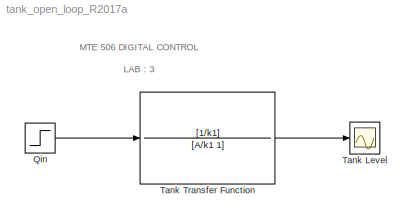
MODEL tank_open_loop_R2017a
KIND model
BLOCK [Step] Qin
  After = qin
  SID = 2
  SampleTime = 0
  Time = 0
BLOCK [Scope] Tank Level
  Floating = off
  NumInputPorts = 1
  Ports = [1]
  SID = 3
  ScopeSpecificationString = Simulink.scopes.TimeScopeBlockCfg('CurrentConfiguration', extmgr.ConfigurationSet(extmgr.Configuration('Core','General UI',true),extmgr.Configuration('Core','Source UI',true),extmgr.Configuration('Sources','WiredSimulink',true),extmgr.Configuration('Visuals','Time Domain',true),extmgr.Configuration('Tools','Plot Navigation',true),extmgr.Configuration('Tools','Measurements',true)),'Version','2018b'...<+1ch>
BLOCK [TransferFcn] Tank Transfer Function
  Denominator = [A/k1 1]
  Numerator = [1/k1]
  SID = 1
ANNOTATION (root): \n \n MTE 506 DIGITAL CONTROL \n LAB : 3 \n EXERCISE : 1
LINE Qin:1 -> Tank Transfer Function:1
LINE Tank Transfer Function:1 -> Tank Level:1
